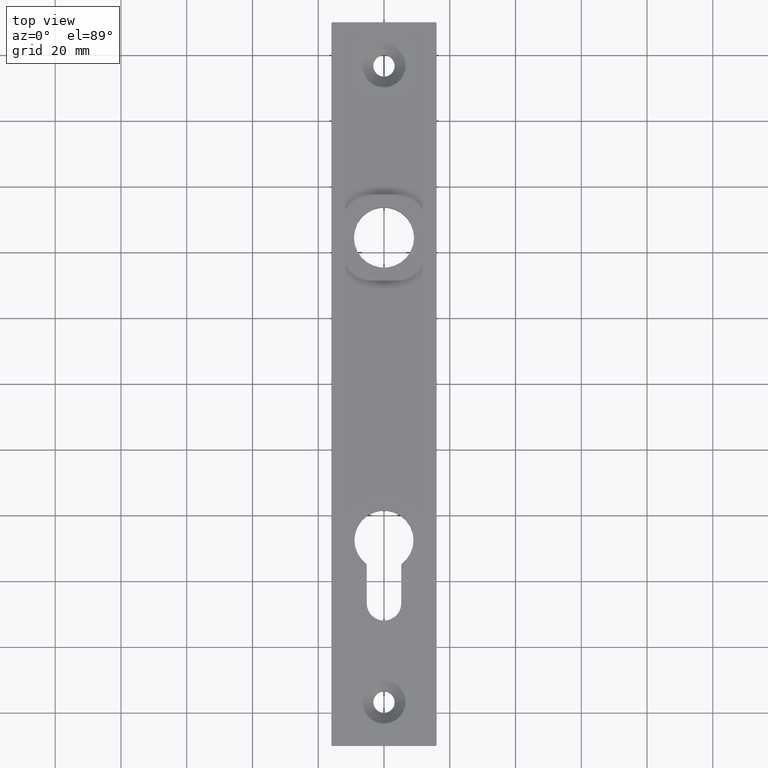
[diagram: clean part render]
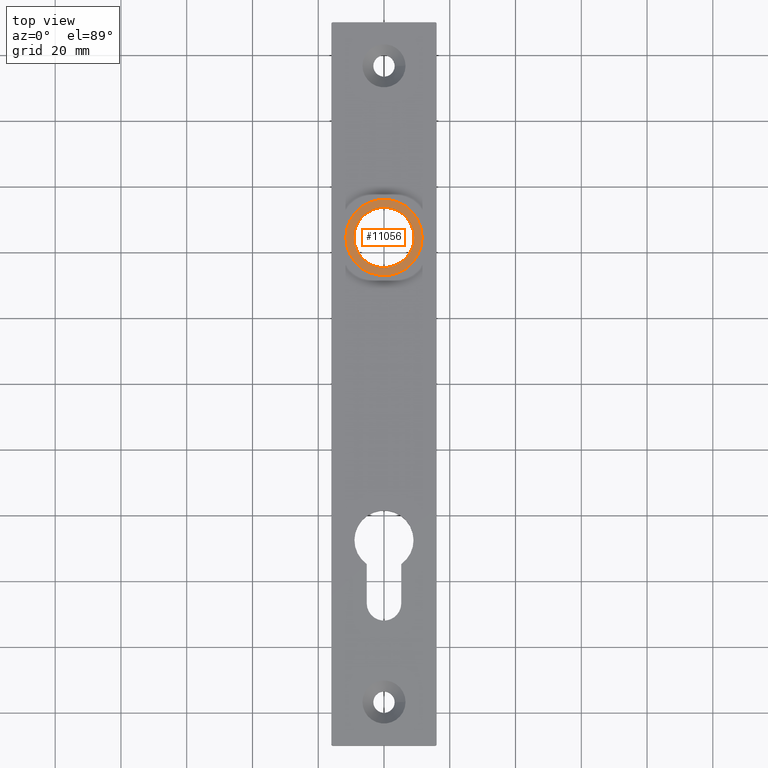
[diagram: same view with one face highlighted and labeled with its STEP entity id]
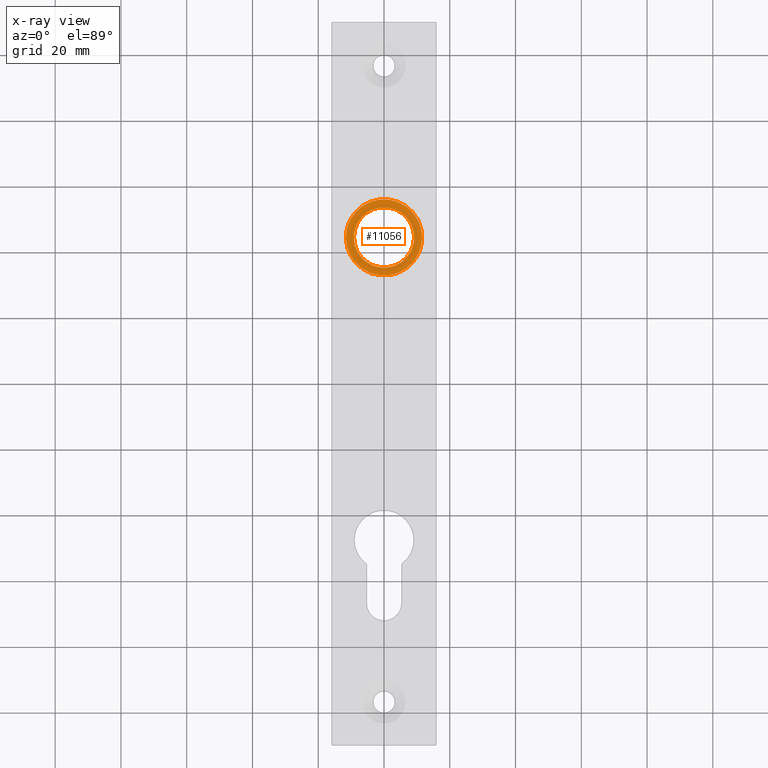
[diagram: x-ray of the same camera — body ghosted, the highlighted face saturated]
A machine part, top view. The second image highlights one B-rep face of the part: STEP entity #11056.
The next image is the same camera in x-ray: the body ghosted, the highlighted face saturated — about 0% of this face is hidden behind the body in this view.
In plain terms, the highlighted planar face has unit normal (0, 0, 1).
Its self-contained STEP definition (entity closure, byte-faithful):
#46 = PLANE ( 'NONE',  #1358 ) ;
#709 = ORIENTED_EDGE ( 'NONE', *, *, #11683, .F. ) ;
#954 = CARTESIAN_POINT ( 'NONE',  ( 0.0000000000000000000, 0.0000000000000000000, 7.000000000000000000 ) ) ;
#1358 = AXIS2_PLACEMENT_3D ( 'NONE', #7274, #2759, #2727 ) ;
#1707 = CIRCLE ( 'NONE', #4745, 11.60000000000000000 ) ;
#1999 = FACE_OUTER_BOUND ( 'NONE', #2104, .T. ) ;
#2104 = EDGE_LOOP ( 'NONE', ( #709 ) ) ;
#2727 = DIRECTION ( 'NONE',  ( 1.000000000000000000, 0.0000000000000000000, -0.0000000000000000000 ) ) ;
#2759 = DIRECTION ( 'NONE',  ( 0.0000000000000000000, 0.0000000000000000000, 1.000000000000000000 ) ) ;
#2783 = DIRECTION ( 'NONE',  ( -0.0000000000000000000, -0.0000000000000000000, -1.000000000000000000 ) ) ;
#2817 = DIRECTION ( 'NONE',  ( -0.0000000000000000000, -0.0000000000000000000, -1.000000000000000000 ) ) ;
#2857 = VERTEX_POINT ( 'NONE', #5577 ) ;
#2976 = CARTESIAN_POINT ( 'NONE',  ( -9.150000000000000400, 0.0000000000000000000, 7.000000000000000000 ) ) ;
#3684 = DIRECTION ( 'NONE',  ( -1.000000000000000000, 0.0000000000000000000, 0.0000000000000000000 ) ) ;
#3845 = FACE_BOUND ( 'NONE', #7715, .T. ) ;
#3953 = CIRCLE ( 'NONE', #11231, 9.150000000000000400 ) ;
#4506 = ORIENTED_EDGE ( 'NONE', *, *, #5355, .T. ) ;
#4745 = AXIS2_PLACEMENT_3D ( 'NONE', #954, #2817, #9005 ) ;
#5355 = EDGE_CURVE ( 'NONE', #8887, #8887, #3953, .T. ) ;
#5577 = CARTESIAN_POINT ( 'NONE',  ( -11.60000000000000000, 0.0000000000000000000, 7.000000000000000000 ) ) ;
#7274 = CARTESIAN_POINT ( 'NONE',  ( 0.0000000000000000000, 9.150000000000000400, 7.000000000000000000 ) ) ;
#7715 = EDGE_LOOP ( 'NONE', ( #4506 ) ) ;
#8153 = CARTESIAN_POINT ( 'NONE',  ( 0.0000000000000000000, 0.0000000000000000000, 7.000000000000000000 ) ) ;
#8887 = VERTEX_POINT ( 'NONE', #2976 ) ;
#9005 = DIRECTION ( 'NONE',  ( -1.000000000000000000, 0.0000000000000000000, 0.0000000000000000000 ) ) ;
#11056 = ADVANCED_FACE ( 'NONE', ( #3845, #1999 ), #46, .T. ) ;
#11231 = AXIS2_PLACEMENT_3D ( 'NONE', #8153, #2783, #3684 ) ;
#11683 = EDGE_CURVE ( 'NONE', #2857, #2857, #1707, .T. ) ;